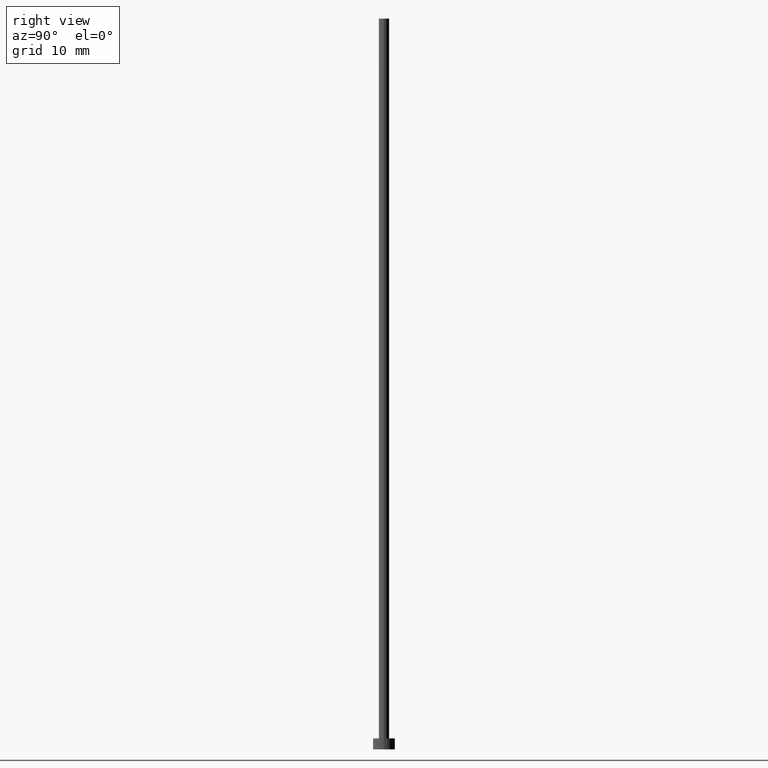
[diagram: clean part render]
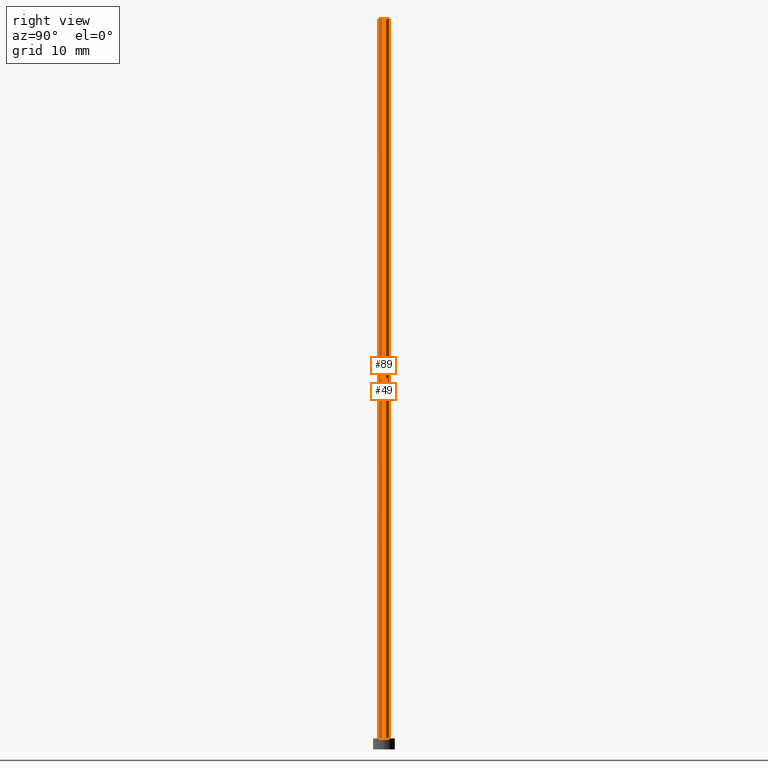
[diagram: same view with one multi-face feature highlighted, each face labeled with its STEP entity id]
A machine part, right view. The highlighted faces form ONE feature: a constant-radius fillet chain: 2 tangent blend faces with common blend radius 0.7 mm. The faces share edges in the B-rep.
Their STEP definitions:
[1] entity #89 (Cylinder):
#1 = DIRECTION ( 'NONE',  ( 1.000000000000000000, 0.000000000000000000, 0.000000000000000000 ) ) ;
#2 = DIRECTION ( 'NONE',  ( 1.000000000000000000, 0.000000000000000000, 0.000000000000000000 ) ) ;
#4 = CARTESIAN_POINT ( 'NONE',  ( 0.6999999999999999556, 8.572527594031471957E-17, 100.0000000000000000 ) ) ;
#10 = LINE ( 'NONE', #100, #196 ) ;
#15 = VERTEX_POINT ( 'NONE', #193 ) ;
#22 = EDGE_CURVE ( 'NONE', #172, #109, #234, .T. ) ;
#25 = AXIS2_PLACEMENT_3D ( 'NONE', #156, #136, #2 ) ;
#30 = VERTEX_POINT ( 'NONE', #155 ) ;
#31 = AXIS2_PLACEMENT_3D ( 'NONE', #175, #194, #151 ) ;
#43 = EDGE_CURVE ( 'NONE', #15, #30, #48, .T. ) ;
#48 = CIRCLE ( 'NONE', #159, 0.6999999999999999556 ) ;
#64 = CARTESIAN_POINT ( 'NONE',  ( 0.6999999999999999556, 8.572527594031471957E-17, 100.0000000000000000 ) ) ;
#82 = LINE ( 'NONE', #64, #211 ) ;
#89 = ADVANCED_FACE ( 'NONE', ( #255 ), #99, .T. ) ;
#99 = CYLINDRICAL_SURFACE ( 'NONE', #31, 0.6999999999999999556 ) ;
#100 = CARTESIAN_POINT ( 'NONE',  ( -0.6999999999999999556, 0.000000000000000000, 100.0000000000000000 ) ) ;
#109 = VERTEX_POINT ( 'NONE', #4 ) ;
#112 = ORIENTED_EDGE ( 'NONE', *, *, #114, .F. ) ;
#114 = EDGE_CURVE ( 'NONE', #109, #30, #82, .T. ) ;
#118 = CARTESIAN_POINT ( 'NONE',  ( -0.6999999999999999556, 0.000000000000000000, 100.0000000000000000 ) ) ;
#136 = DIRECTION ( 'NONE',  ( 0.000000000000000000, 0.000000000000000000, 1.000000000000000000 ) ) ;
#138 = DIRECTION ( 'NONE',  ( 0.000000000000000000, 0.000000000000000000, 1.000000000000000000 ) ) ;
#151 = DIRECTION ( 'NONE',  ( -1.000000000000000000, 0.000000000000000000, 0.000000000000000000 ) ) ;
#155 = CARTESIAN_POINT ( 'NONE',  ( 0.6999999999999999556, 8.572527594031471957E-17, 1.500000000000000000 ) ) ;
#156 = CARTESIAN_POINT ( 'NONE',  ( 0.000000000000000000, 0.000000000000000000, 100.0000000000000000 ) ) ;
#159 = AXIS2_PLACEMENT_3D ( 'NONE', #191, #138, #1 ) ;
#162 = EDGE_CURVE ( 'NONE', #172, #15, #10, .T. ) ;
#168 = EDGE_LOOP ( 'NONE', ( #112, #212, #195, #181 ) ) ;
#172 = VERTEX_POINT ( 'NONE', #118 ) ;
#175 = CARTESIAN_POINT ( 'NONE',  ( 0.000000000000000000, 0.000000000000000000, 100.0000000000000000 ) ) ;
#177 = DIRECTION ( 'NONE',  ( -0.000000000000000000, -0.000000000000000000, -1.000000000000000000 ) ) ;
#181 = ORIENTED_EDGE ( 'NONE', *, *, #43, .T. ) ;
#191 = CARTESIAN_POINT ( 'NONE',  ( 0.000000000000000000, 0.000000000000000000, 1.500000000000000000 ) ) ;
#193 = CARTESIAN_POINT ( 'NONE',  ( -0.6999999999999999556, 0.000000000000000000, 1.500000000000000000 ) ) ;
#194 = DIRECTION ( 'NONE',  ( -0.000000000000000000, -0.000000000000000000, -1.000000000000000000 ) ) ;
#195 = ORIENTED_EDGE ( 'NONE', *, *, #162, .T. ) ;
#196 = VECTOR ( 'NONE', #198, 1000.000000000000000 ) ;
#198 = DIRECTION ( 'NONE',  ( -0.000000000000000000, -0.000000000000000000, -1.000000000000000000 ) ) ;
#211 = VECTOR ( 'NONE', #177, 1000.000000000000000 ) ;
#212 = ORIENTED_EDGE ( 'NONE', *, *, #22, .F. ) ;
#234 = CIRCLE ( 'NONE', #25, 0.6999999999999999556 ) ;
#255 = FACE_OUTER_BOUND ( 'NONE', #168, .T. ) ;
[2] entity #49 (Cylinder):
#4 = CARTESIAN_POINT ( 'NONE',  ( 0.6999999999999999556, 8.572527594031471957E-17, 100.0000000000000000 ) ) ;
#10 = LINE ( 'NONE', #100, #196 ) ;
#15 = VERTEX_POINT ( 'NONE', #193 ) ;
#16 = CARTESIAN_POINT ( 'NONE',  ( 0.000000000000000000, 0.000000000000000000, 100.0000000000000000 ) ) ;
#17 = CYLINDRICAL_SURFACE ( 'NONE', #220, 0.6999999999999999556 ) ;
#19 = DIRECTION ( 'NONE',  ( -0.000000000000000000, -0.000000000000000000, -1.000000000000000000 ) ) ;
#23 = DIRECTION ( 'NONE',  ( 1.000000000000000000, 0.000000000000000000, 0.000000000000000000 ) ) ;
#30 = VERTEX_POINT ( 'NONE', #155 ) ;
#35 = ORIENTED_EDGE ( 'NONE', *, *, #114, .T. ) ;
#49 = ADVANCED_FACE ( 'NONE', ( #171 ), #17, .T. ) ;
#64 = CARTESIAN_POINT ( 'NONE',  ( 0.6999999999999999556, 8.572527594031471957E-17, 100.0000000000000000 ) ) ;
#67 = CARTESIAN_POINT ( 'NONE',  ( 0.000000000000000000, 0.000000000000000000, 100.0000000000000000 ) ) ;
#76 = AXIS2_PLACEMENT_3D ( 'NONE', #67, #121, #83 ) ;
#81 = AXIS2_PLACEMENT_3D ( 'NONE', #239, #176, #23 ) ;
#82 = LINE ( 'NONE', #64, #211 ) ;
#83 = DIRECTION ( 'NONE',  ( 1.000000000000000000, 0.000000000000000000, 0.000000000000000000 ) ) ;
#100 = CARTESIAN_POINT ( 'NONE',  ( -0.6999999999999999556, 0.000000000000000000, 100.0000000000000000 ) ) ;
#109 = VERTEX_POINT ( 'NONE', #4 ) ;
#114 = EDGE_CURVE ( 'NONE', #109, #30, #82, .T. ) ;
#115 = ORIENTED_EDGE ( 'NONE', *, *, #162, .F. ) ;
#118 = CARTESIAN_POINT ( 'NONE',  ( -0.6999999999999999556, 0.000000000000000000, 100.0000000000000000 ) ) ;
#121 = DIRECTION ( 'NONE',  ( 0.000000000000000000, 0.000000000000000000, 1.000000000000000000 ) ) ;
#125 = ORIENTED_EDGE ( 'NONE', *, *, #204, .F. ) ;
#155 = CARTESIAN_POINT ( 'NONE',  ( 0.6999999999999999556, 8.572527594031471957E-17, 1.500000000000000000 ) ) ;
#162 = EDGE_CURVE ( 'NONE', #172, #15, #10, .T. ) ;
#166 = CIRCLE ( 'NONE', #81, 0.6999999999999999556 ) ;
#171 = FACE_OUTER_BOUND ( 'NONE', #173, .T. ) ;
#172 = VERTEX_POINT ( 'NONE', #118 ) ;
#173 = EDGE_LOOP ( 'NONE', ( #125, #35, #252, #115 ) ) ;
#176 = DIRECTION ( 'NONE',  ( 0.000000000000000000, 0.000000000000000000, 1.000000000000000000 ) ) ;
#177 = DIRECTION ( 'NONE',  ( -0.000000000000000000, -0.000000000000000000, -1.000000000000000000 ) ) ;
#187 = CIRCLE ( 'NONE', #76, 0.6999999999999999556 ) ;
#193 = CARTESIAN_POINT ( 'NONE',  ( -0.6999999999999999556, 0.000000000000000000, 1.500000000000000000 ) ) ;
#196 = VECTOR ( 'NONE', #198, 1000.000000000000000 ) ;
#198 = DIRECTION ( 'NONE',  ( -0.000000000000000000, -0.000000000000000000, -1.000000000000000000 ) ) ;
#204 = EDGE_CURVE ( 'NONE', #109, #172, #187, .T. ) ;
#211 = VECTOR ( 'NONE', #177, 1000.000000000000000 ) ;
#214 = DIRECTION ( 'NONE',  ( -1.000000000000000000, 0.000000000000000000, 0.000000000000000000 ) ) ;
#220 = AXIS2_PLACEMENT_3D ( 'NONE', #16, #19, #214 ) ;
#230 = EDGE_CURVE ( 'NONE', #30, #15, #166, .T. ) ;
#239 = CARTESIAN_POINT ( 'NONE',  ( 0.000000000000000000, 0.000000000000000000, 1.500000000000000000 ) ) ;
#252 = ORIENTED_EDGE ( 'NONE', *, *, #230, .T. ) ;